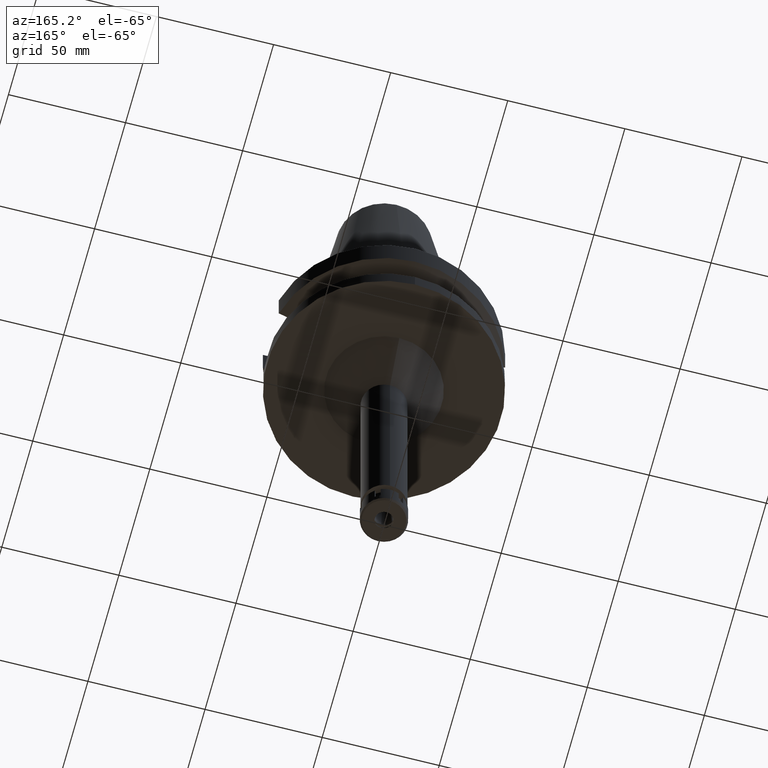
[diagram: clean part render]
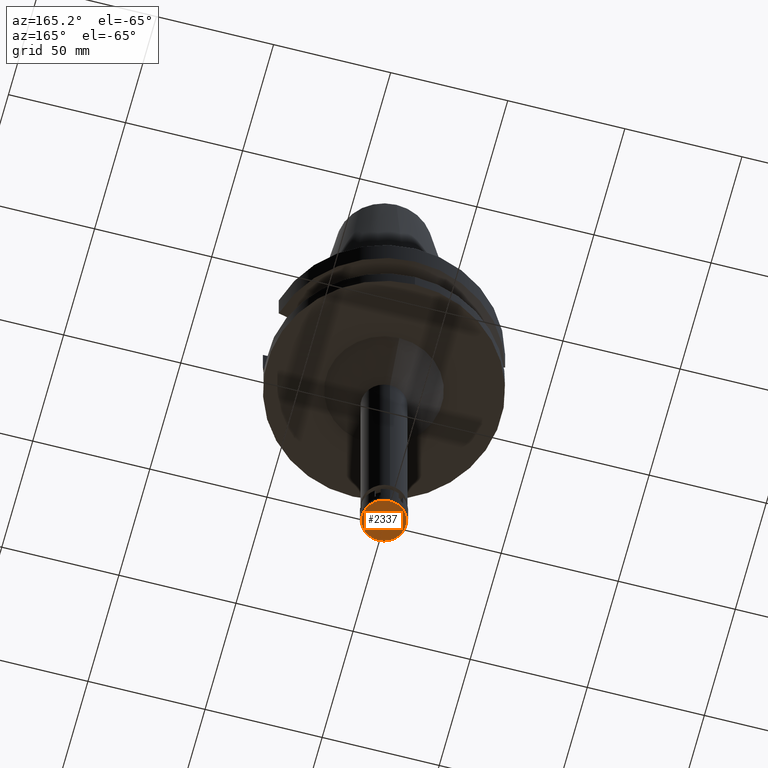
[diagram: same view with one face highlighted and labeled with its STEP entity id]
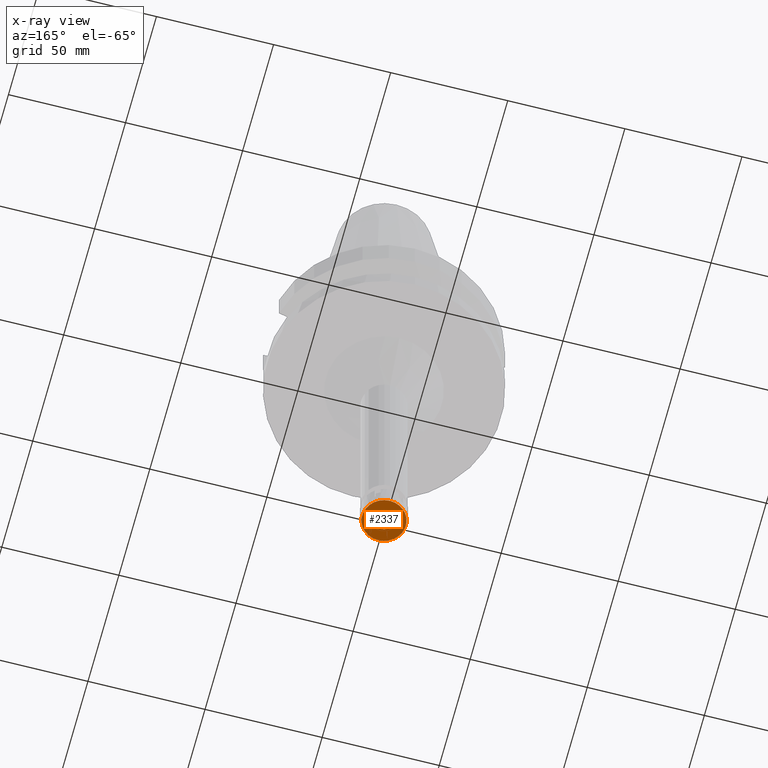
[diagram: x-ray of the same camera — body ghosted, the highlighted face saturated]
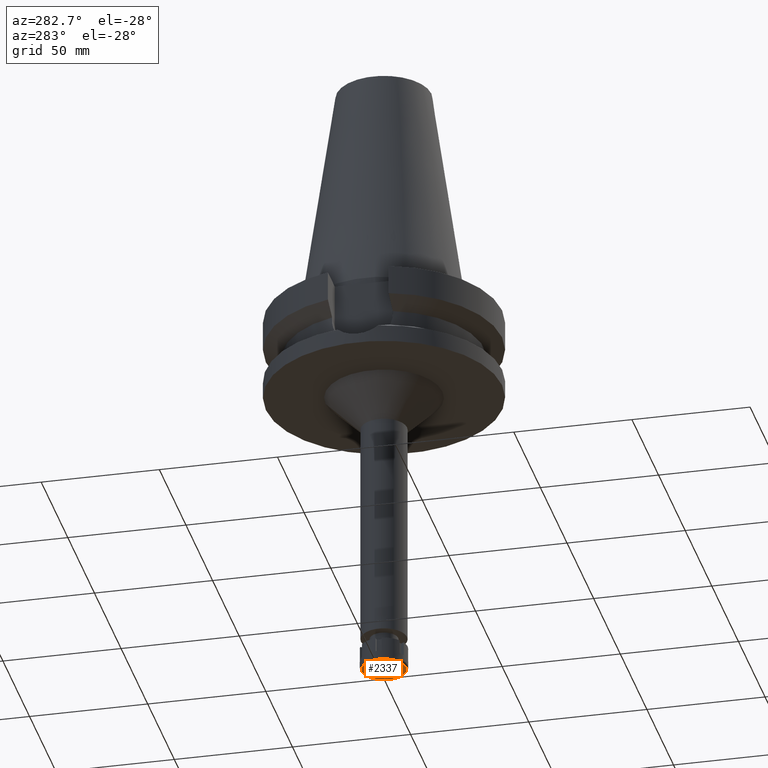
[diagram: same view with one face highlighted and labeled with its STEP entity id]
A machine part, auxiliary view. The second image highlights one B-rep face of the part: STEP entity #2337.
The next image is the same camera in x-ray: the body ghosted, the highlighted face saturated — about 0% of this face is hidden behind the body in this view.
A second angle (auxiliary view) of the same face is appended — the face is thin or edge-on in the first view.
In plain terms, the highlighted planar face has unit normal (0, 0, -1).
Its self-contained STEP definition (entity closure, byte-faithful):
#22 = VERTEX_POINT ( 'NONE', #2019 ) ;
#71 = FACE_OUTER_BOUND ( 'NONE', #486, .T. ) ;
#402 = ORIENTED_EDGE ( 'NONE', *, *, #1372, .F. ) ;
#486 = EDGE_LOOP ( 'NONE', ( #3249, #2858 ) ) ;
#491 = CIRCLE ( 'NONE', #3155, 9.299999999999998934 ) ;
#587 = PLANE ( 'NONE',  #2922 ) ;
#653 = DIRECTION ( 'NONE',  ( 0.0000000000000000000, -1.000000000000000000, 0.0000000000000000000 ) ) ;
#659 = DIRECTION ( 'NONE',  ( 0.0000000000000000000, 1.000000000000000000, 0.0000000000000000000 ) ) ;
#855 = DIRECTION ( 'NONE',  ( 0.0000000000000000000, -1.000000000000000000, 0.0000000000000000000 ) ) ;
#870 = CARTESIAN_POINT ( 'NONE',  ( 0.0000000000000000000, 3.950000000000000178, -9.500000000000000000 ) ) ;
#925 = DIRECTION ( 'NONE',  ( 0.0000000000000000000, 0.0000000000000000000, -1.000000000000000000 ) ) ;
#1246 = AXIS2_PLACEMENT_3D ( 'NONE', #2959, #925, #3543 ) ;
#1372 = EDGE_CURVE ( 'NONE', #22, #2318, #2216, .T. ) ;
#1491 = VERTEX_POINT ( 'NONE', #3614 ) ;
#1515 = CARTESIAN_POINT ( 'NONE',  ( 0.0000000000000000000, 0.0000000000000000000, -9.500000000000000000 ) ) ;
#1618 = CIRCLE ( 'NONE', #2515, 3.950000000000000178 ) ;
#1794 = ORIENTED_EDGE ( 'NONE', *, *, #3664, .F. ) ;
#1837 = CARTESIAN_POINT ( 'NONE',  ( 0.0000000000000000000, 0.0000000000000000000, -9.500000000000000000 ) ) ;
#2019 = CARTESIAN_POINT ( 'NONE',  ( 0.0000000000000000000, -3.950000000000000178, -9.500000000000000000 ) ) ;
#2029 = DIRECTION ( 'NONE',  ( 0.0000000000000000000, 0.0000000000000000000, 1.000000000000000000 ) ) ;
#2082 = DIRECTION ( 'NONE',  ( 0.0000000000000000000, 0.0000000000000000000, -1.000000000000000000 ) ) ;
#2156 = AXIS2_PLACEMENT_3D ( 'NONE', #2906, #2029, #2839 ) ;
#2216 = CIRCLE ( 'NONE', #1246, 3.950000000000000178 ) ;
#2312 = EDGE_CURVE ( 'NONE', #1491, #2739, #3153, .T. ) ;
#2318 = VERTEX_POINT ( 'NONE', #870 ) ;
#2337 = ADVANCED_FACE ( 'NONE', ( #71, #2855 ), #587, .T. ) ;
#2515 = AXIS2_PLACEMENT_3D ( 'NONE', #1837, #2082, #659 ) ;
#2593 = CARTESIAN_POINT ( 'NONE',  ( 0.0000000000000000000, 0.0000000000000000000, -9.500000000000000000 ) ) ;
#2682 = EDGE_CURVE ( 'NONE', #2739, #1491, #491, .T. ) ;
#2739 = VERTEX_POINT ( 'NONE', #2937 ) ;
#2775 = EDGE_LOOP ( 'NONE', ( #1794, #402 ) ) ;
#2839 = DIRECTION ( 'NONE',  ( 0.0000000000000000000, 1.000000000000000000, 0.0000000000000000000 ) ) ;
#2855 = FACE_BOUND ( 'NONE', #2775, .T. ) ;
#2858 = ORIENTED_EDGE ( 'NONE', *, *, #2682, .F. ) ;
#2906 = CARTESIAN_POINT ( 'NONE',  ( 0.0000000000000000000, 0.0000000000000000000, -9.500000000000000000 ) ) ;
#2922 = AXIS2_PLACEMENT_3D ( 'NONE', #2593, #3415, #855 ) ;
#2937 = CARTESIAN_POINT ( 'NONE',  ( 0.0000000000000000000, -9.299999999999998934, -9.500000000000000000 ) ) ;
#2959 = CARTESIAN_POINT ( 'NONE',  ( 0.0000000000000000000, 0.0000000000000000000, -9.500000000000000000 ) ) ;
#3153 = CIRCLE ( 'NONE', #2156, 9.299999999999998934 ) ;
#3155 = AXIS2_PLACEMENT_3D ( 'NONE', #1515, #3212, #653 ) ;
#3212 = DIRECTION ( 'NONE',  ( 0.0000000000000000000, 0.0000000000000000000, 1.000000000000000000 ) ) ;
#3249 = ORIENTED_EDGE ( 'NONE', *, *, #2312, .F. ) ;
#3415 = DIRECTION ( 'NONE',  ( 0.0000000000000000000, 0.0000000000000000000, -1.000000000000000000 ) ) ;
#3543 = DIRECTION ( 'NONE',  ( 0.0000000000000000000, -1.000000000000000000, 0.0000000000000000000 ) ) ;
#3614 = CARTESIAN_POINT ( 'NONE',  ( 0.0000000000000000000, 9.299999999999998934, -9.500000000000000000 ) ) ;
#3664 = EDGE_CURVE ( 'NONE', #2318, #22, #1618, .T. ) ;